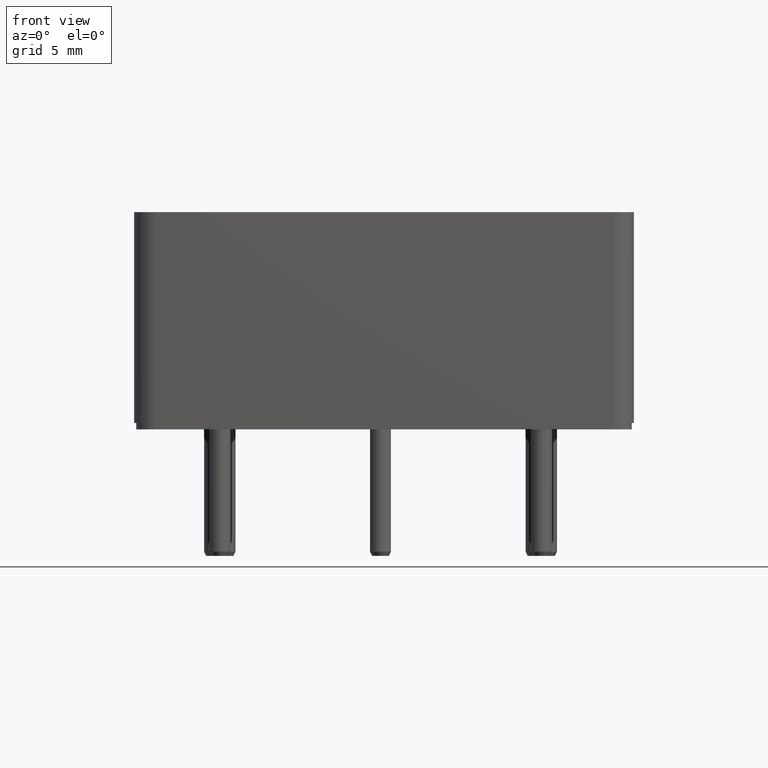
[diagram: clean part render]
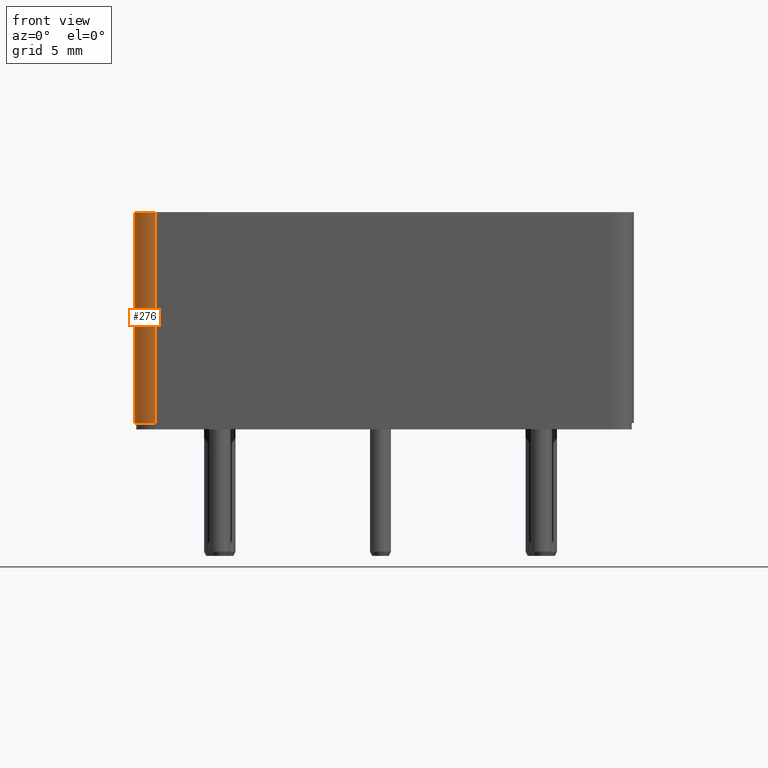
[diagram: same view with one face highlighted and labeled with its STEP entity id]
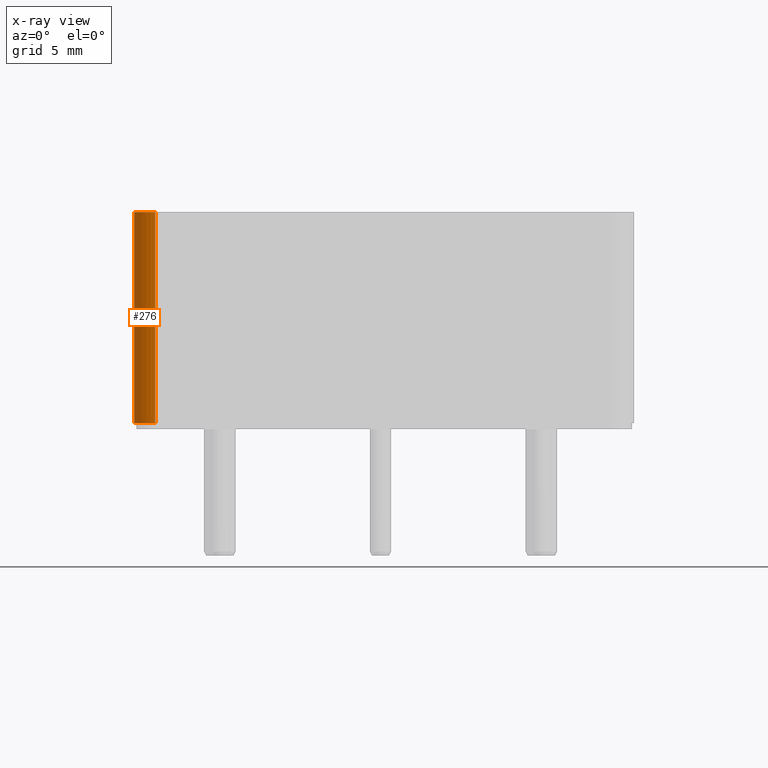
[diagram: x-ray of the same camera — body ghosted, the highlighted face saturated]
A machine part, front view. The second image highlights one B-rep face of the part: STEP entity #276.
The next image is the same camera in x-ray: the body ghosted, the highlighted face saturated — about 0% of this face is hidden behind the body in this view.
In plain terms, the highlighted cylindrical surface (edge-blend (fillet) strip) has radius 1 mm, axis along (0, 0, 1).
Its self-contained STEP definition (entity closure, byte-faithful):
#276=ADVANCED_FACE('',(#627),#629,.T.);
#627=FACE_BOUND('',#628,.T.);
#628=EDGE_LOOP('',(#844,#845,#846,#847));
#629=CYLINDRICAL_SURFACE('',#630,1.);
#630=AXIS2_PLACEMENT_3D('',#631,#632,#633);
#631=CARTESIAN_POINT('',(-10.85,-8.7,14.3));
#632=DIRECTION('',(9.70686797486476E-17,0.,1.));
#633=DIRECTION('',(-1.,0.,9.70686797486476E-17));
#844=ORIENTED_EDGE('',*,*,#929,.T.);
#845=ORIENTED_EDGE('',*,*,#940,.F.);
#846=ORIENTED_EDGE('',*,*,#941,.T.);
#847=ORIENTED_EDGE('',*,*,#942,.T.);
#929=EDGE_CURVE('',#1033,#1031,#1034,.T.);
#940=EDGE_CURVE('',#1050,#1031,#1052,.T.);
#941=EDGE_CURVE('',#1050,#1053,#1054,.F.);
#942=EDGE_CURVE('',#1053,#1033,#1055,.T.);
#1031=VERTEX_POINT('',#1262);
#1033=VERTEX_POINT('',#1266);
#1034=CIRCLE('',#1267,1.);
#1050=VERTEX_POINT('',#1307);
#1052=LINE('',#1311,#1312);
#1053=VERTEX_POINT('',#1314);
#1054=CIRCLE('',#1315,1.);
#1055=LINE('',#1319,#1320);
#1262=CARTESIAN_POINT('',(-10.85,-9.7,0.299999999999999));
#1266=CARTESIAN_POINT('',(-11.85,-8.7,0.299999999999999));
#1267=AXIS2_PLACEMENT_3D('',#1268,#1269,#1270);
#1268=CARTESIAN_POINT('',(-10.85,-8.7,0.299999999999999));
#1269=DIRECTION('',(-1.22464679914735E-16,0.,1.));
#1270=DIRECTION('',(-1.,0.,-1.22464679914735E-16));
#1307=CARTESIAN_POINT('',(-10.85,-9.7,10.3));
#1311=CARTESIAN_POINT('',(-10.85,-9.7,10.3));
#1312=VECTOR('',#1313,1.);
#1313=DIRECTION('',(1.77635683940025E-16,0.,-1.));
#1314=CARTESIAN_POINT('',(-11.85,-8.7,10.3));
#1315=AXIS2_PLACEMENT_3D('',#1316,#1317,#1318);
#1316=CARTESIAN_POINT('',(-10.85,-8.7,10.3));
#1317=DIRECTION('',(-1.22464679914735E-16,0.,1.));
#1318=DIRECTION('',(-1.,0.,-1.22464679914735E-16));
#1319=CARTESIAN_POINT('',(-11.85,-8.7,10.3));
#1320=VECTOR('',#1321,1.);
#1321=DIRECTION('',(-1.77635683940025E-16,-1.77635683940025E-16,-1.));